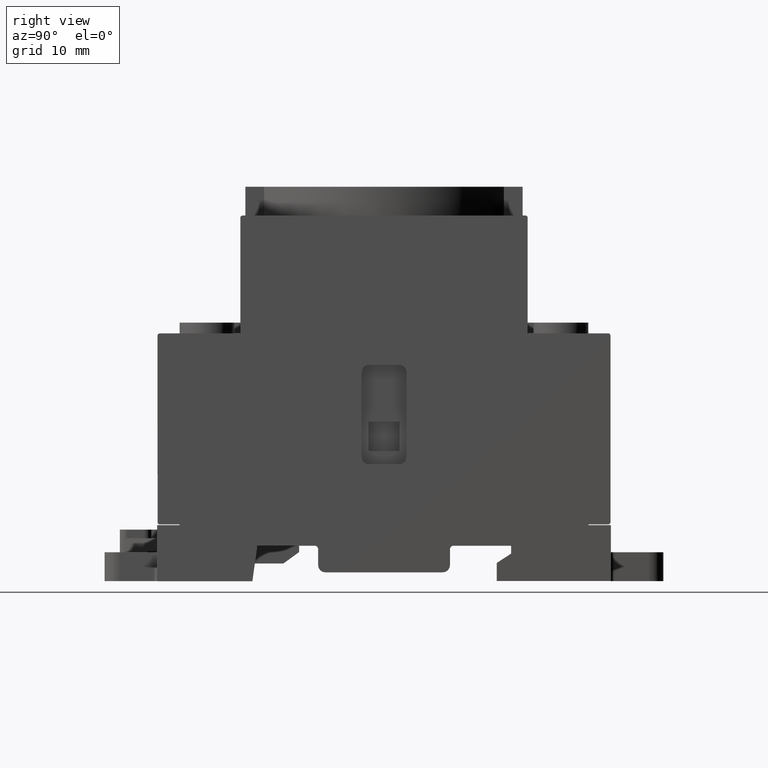
[diagram: clean part render]
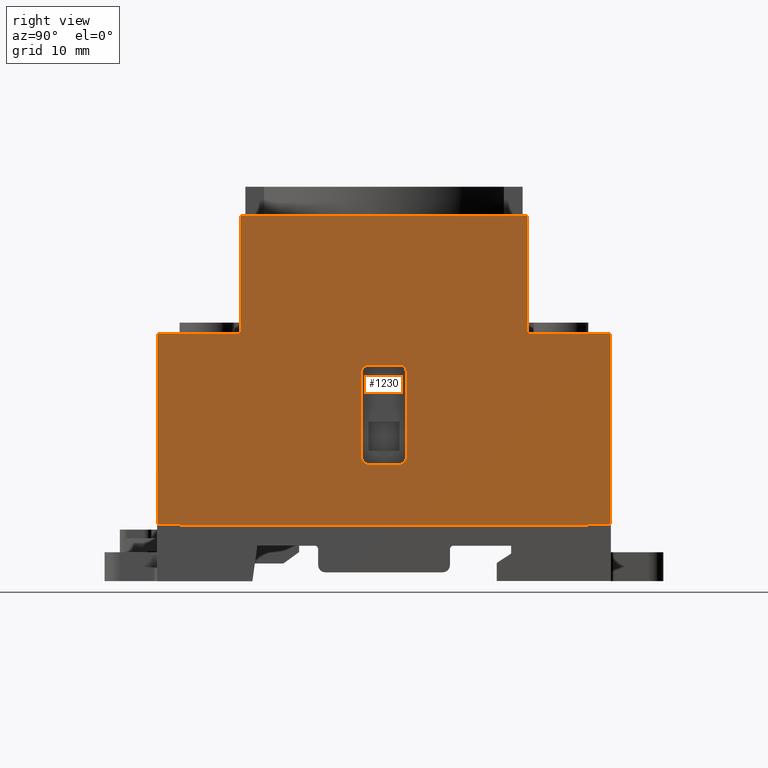
[diagram: same view with one face highlighted and labeled with its STEP entity id]
A machine part, right view. The second image highlights one B-rep face of the part: STEP entity #1230.
In plain terms, the highlighted planar face has unit normal (1, 0, 0).
Its self-contained STEP definition (entity closure, byte-faithful):
#1230=ADVANCED_FACE('',(#2026,#2027),#1693,.T.);
#1693=PLANE('',#10381);
#2026=FACE_BOUND('',#2260,.T.);
#2027=FACE_BOUND('',#2261,.T.);
#2260=EDGE_LOOP('',(#3896,#3897,#3898,#3899,#3900,#3901,#3902,#3903));
#2261=EDGE_LOOP('',(#3904,#3905,#3906,#3907,#3908,#3909,#3910,#3911,#3912,
#3913,#3914,#3915,#3916,#3917,#3918,#3919,#3920,#3921));
#2733=CIRCLE('',#10271,0.300000000000077);
#2734=CIRCLE('',#10279,0.299999999999963);
#2752=CIRCLE('',#10343,0.30000001135944);
#2753=CIRCLE('',#10349,0.30000001135944);
#2759=CIRCLE('',#10363,0.299999999999955);
#2760=CIRCLE('',#10367,0.300000000000068);
#2766=CIRCLE('',#10377,1.00000000379441);
#2767=CIRCLE('',#10378,1.0000000056778);
#2768=CIRCLE('',#10379,0.999999970752071);
#2769=CIRCLE('',#10380,0.999999995953317);
#3896=ORIENTED_EDGE('',*,*,#7220,.F.);
#3897=ORIENTED_EDGE('',*,*,#7221,.F.);
#3898=ORIENTED_EDGE('',*,*,#7222,.F.);
#3899=ORIENTED_EDGE('',*,*,#7223,.F.);
#3900=ORIENTED_EDGE('',*,*,#7224,.F.);
#3901=ORIENTED_EDGE('',*,*,#7225,.F.);
#3902=ORIENTED_EDGE('',*,*,#7226,.F.);
#3903=ORIENTED_EDGE('',*,*,#7227,.F.);
#3904=ORIENTED_EDGE('',*,*,#7152,.T.);
#3905=ORIENTED_EDGE('',*,*,#7162,.T.);
#3906=ORIENTED_EDGE('',*,*,#7169,.T.);
#3907=ORIENTED_EDGE('',*,*,#6963,.T.);
#3908=ORIENTED_EDGE('',*,*,#6980,.T.);
#3909=ORIENTED_EDGE('',*,*,#6994,.T.);
#3910=ORIENTED_EDGE('',*,*,#7003,.T.);
#3911=ORIENTED_EDGE('',*,*,#7014,.T.);
#3912=ORIENTED_EDGE('',*,*,#7171,.T.);
#3913=ORIENTED_EDGE('',*,*,#7174,.T.);
#3914=ORIENTED_EDGE('',*,*,#7177,.T.);
#3915=ORIENTED_EDGE('',*,*,#7191,.T.);
#3916=ORIENTED_EDGE('',*,*,#7196,.T.);
#3917=ORIENTED_EDGE('',*,*,#7203,.T.);
#3918=ORIENTED_EDGE('',*,*,#7205,.T.);
#3919=ORIENTED_EDGE('',*,*,#7121,.T.);
#3920=ORIENTED_EDGE('',*,*,#7140,.T.);
#3921=ORIENTED_EDGE('',*,*,#7143,.T.);
#5934=VERTEX_POINT('',#14345);
#5935=VERTEX_POINT('',#14347);
#5949=VERTEX_POINT('',#14448);
#5961=VERTEX_POINT('',#14512);
#5968=VERTEX_POINT('',#14596);
#5978=VERTEX_POINT('',#14618);
#6073=VERTEX_POINT('',#15056);
#6074=VERTEX_POINT('',#15058);
#6090=VERTEX_POINT('',#15093);
#6092=VERTEX_POINT('',#15114);
#6101=VERTEX_POINT('',#15133);
#6109=VERTEX_POINT('',#15176);
#6114=VERTEX_POINT('',#15209);
#6116=VERTEX_POINT('',#15218);
#6118=VERTEX_POINT('',#15224);
#6129=VERTEX_POINT('',#15249);
#6132=VERTEX_POINT('',#15279);
#6138=VERTEX_POINT('',#15299);
#6150=VERTEX_POINT('',#15370);
#6151=VERTEX_POINT('',#15371);
#6152=VERTEX_POINT('',#15373);
#6153=VERTEX_POINT('',#15375);
#6154=VERTEX_POINT('',#15377);
#6155=VERTEX_POINT('',#15379);
#6156=VERTEX_POINT('',#15381);
#6157=VERTEX_POINT('',#15383);
#6963=EDGE_CURVE('',#5935,#5934,#8252,.T.);
#6980=EDGE_CURVE('',#5934,#5949,#2733,.T.);
#6994=EDGE_CURVE('',#5949,#5961,#8271,.T.);
#7003=EDGE_CURVE('',#5961,#5968,#2734,.T.);
#7014=EDGE_CURVE('',#5968,#5978,#8281,.T.);
#7121=EDGE_CURVE('',#6074,#6073,#8344,.T.);
#7140=EDGE_CURVE('',#6073,#6090,#8356,.T.);
#7143=EDGE_CURVE('',#6090,#6092,#2752,.T.);
#7152=EDGE_CURVE('',#6092,#6101,#8362,.T.);
#7162=EDGE_CURVE('',#6101,#6109,#2753,.T.);
#7169=EDGE_CURVE('',#6109,#5935,#8370,.T.);
#7171=EDGE_CURVE('',#5978,#6114,#8372,.T.);
#7174=EDGE_CURVE('',#6114,#6116,#8374,.T.);
#7177=EDGE_CURVE('',#6116,#6118,#8377,.T.);
#7191=EDGE_CURVE('',#6118,#6129,#8387,.T.);
#7196=EDGE_CURVE('',#6129,#6132,#2759,.T.);
#7203=EDGE_CURVE('',#6132,#6138,#8395,.T.);
#7205=EDGE_CURVE('',#6138,#6074,#2760,.T.);
#7220=EDGE_CURVE('',#6150,#6151,#2766,.T.);
#7221=EDGE_CURVE('',#6152,#6150,#8403,.T.);
#7222=EDGE_CURVE('',#6153,#6152,#2767,.T.);
#7223=EDGE_CURVE('',#6154,#6153,#8404,.T.);
#7224=EDGE_CURVE('',#6155,#6154,#2768,.T.);
#7225=EDGE_CURVE('',#6156,#6155,#8405,.T.);
#7226=EDGE_CURVE('',#6157,#6156,#2769,.T.);
#7227=EDGE_CURVE('',#6151,#6157,#8406,.T.);
#8252=LINE('',#14346,#9287);
#8271=LINE('',#14513,#9306);
#8281=LINE('',#14619,#9316);
#8344=LINE('',#15057,#9379);
#8356=LINE('',#15094,#9391);
#8362=LINE('',#15134,#9397);
#8370=LINE('',#15205,#9405);
#8372=LINE('',#15208,#9407);
#8374=LINE('',#15217,#9409);
#8377=LINE('',#15223,#9412);
#8387=LINE('',#15250,#9422);
#8395=LINE('',#15300,#9430);
#8403=LINE('',#15372,#9438);
#8404=LINE('',#15376,#9439);
#8405=LINE('',#15380,#9440);
#8406=LINE('',#15384,#9441);
#9287=VECTOR('',#11577,1.);
#9306=VECTOR('',#11616,1.);
#9316=VECTOR('',#11646,1.);
#9379=VECTOR('',#11809,1.);
#9391=VECTOR('',#11837,1.);
#9397=VECTOR('',#11855,1.);
#9405=VECTOR('',#11873,1.);
#9407=VECTOR('',#11877,1.);
#9409=VECTOR('',#11881,1.);
#9412=VECTOR('',#11886,1.);
#9422=VECTOR('',#11906,1.);
#9430=VECTOR('',#11922,1.);
#9438=VECTOR('',#11956,1.);
#9439=VECTOR('',#11959,1.);
#9440=VECTOR('',#11962,1.);
#9441=VECTOR('',#11965,1.);
#10271=AXIS2_PLACEMENT_3D('',#14449,#11600,#11601);
#10279=AXIS2_PLACEMENT_3D('',#14597,#11629,#11630);
#10343=AXIS2_PLACEMENT_3D('',#15115,#11840,#11841);
#10349=AXIS2_PLACEMENT_3D('',#15177,#11862,#11863);
#10363=AXIS2_PLACEMENT_3D('',#15280,#11913,#11914);
#10367=AXIS2_PLACEMENT_3D('',#15304,#11927,#11928);
#10377=AXIS2_PLACEMENT_3D('',#15369,#11954,#11955);
#10378=AXIS2_PLACEMENT_3D('',#15374,#11957,#11958);
#10379=AXIS2_PLACEMENT_3D('',#15378,#11960,#11961);
#10380=AXIS2_PLACEMENT_3D('',#15382,#11963,#11964);
#10381=AXIS2_PLACEMENT_3D('',#15385,#11966,#11967);
#11577=DIRECTION('',(0.,-0.999999999982344,-5.94243338354822E-006));
#11600=DIRECTION('',(1.,0.,0.));
#11601=DIRECTION('',(0.,0.,1.));
#11616=DIRECTION('',(0.,5.94131062828003E-006,-0.999999999982351));
#11629=DIRECTION('',(1.,0.,0.));
#11630=DIRECTION('',(0.,0.,0.999999999999989));
#11646=DIRECTION('',(0.,0.999999999982357,5.94018289159245E-006));
#11809=DIRECTION('',(0.,-1.,1.27884006649481E-009));
#11837=DIRECTION('',(0.,3.07067344441846E-010,1.));
#11840=DIRECTION('',(1.,0.,0.));
#11841=DIRECTION('',(0.,0.,1.));
#11855=DIRECTION('',(0.,-0.999999999708678,-2.4138038935818E-005));
#11862=DIRECTION('',(1.,0.,0.));
#11863=DIRECTION('',(0.,0.,1.));
#11873=DIRECTION('',(0.,5.94115462204157E-006,-0.999999999982351));
#11877=DIRECTION('',(0.,5.94146193604084E-006,-0.99999999998235));
#11881=DIRECTION('',(0.,1.,0.));
#11886=DIRECTION('',(0.,3.06353707649638E-010,1.));
#11906=DIRECTION('',(0.,1.,9.71740790026304E-010));
#11913=DIRECTION('',(1.,0.,0.));
#11914=DIRECTION('',(0.,0.,0.999999999999995));
#11922=DIRECTION('',(0.,1.56004692388365E-010,1.));
#11927=DIRECTION('',(1.,0.,0.));
#11928=DIRECTION('',(0.,0.,0.999999999999998));
#11954=DIRECTION('',(1.,0.,0.));
#11955=DIRECTION('',(0.,0.,-0.999999999999998));
#11956=DIRECTION('',(0.,0.,-1.));
#11957=DIRECTION('',(1.,0.,0.));
#11958=DIRECTION('',(0.,0.,-1.));
#11959=DIRECTION('',(0.,-1.,1.35143880658643E-009));
#11960=DIRECTION('',(1.,0.,0.));
#11961=DIRECTION('',(0.,0.,-0.999999999999999));
#11962=DIRECTION('',(0.,-2.47867499071609E-009,1.));
#11963=DIRECTION('',(1.,0.,0.));
#11964=DIRECTION('',(0.,0.,-0.999999999999997));
#11965=DIRECTION('',(0.,1.,9.63333245854343E-010));
#11966=DIRECTION('',(1.,0.,0.));
#11967=DIRECTION('',(0.,0.,-1.));
#14345=CARTESIAN_POINT('',(18.,-31.1493287204146,-20.365669819461));
#14346=CARTESIAN_POINT('',(18.,-19.9498420528596,-20.3656032672576));
#14347=CARTESIAN_POINT('',(18.,-19.9498420528596,-20.3656032672576));
#14448=CARTESIAN_POINT('',(18.,-31.4493269379709,-20.6656716018935));
#14449=CARTESIAN_POINT('',(18.,-31.1493269379761,-20.665669819455));
#14512=CARTESIAN_POINT('',(18.,-31.4491728758695,-46.595671601436));
#14513=CARTESIAN_POINT('',(18.,-31.4493269340541,-20.665671601894));
#14596=CARTESIAN_POINT('',(18.,-31.1491710934367,-46.8956698189927));
#14597=CARTESIAN_POINT('',(18.,-31.1491728758751,-46.595669818998));
#14618=CARTESIAN_POINT('',(18.,-28.3790926930757,-46.8956533642197));
#14619=CARTESIAN_POINT('',(18.,-31.1491710934365,-46.895669818992));
#15056=CARTESIAN_POINT('',(18.,19.9499374932986,-20.3654847407242));
#15057=CARTESIAN_POINT('',(18.,31.1498121594629,-20.365484755047));
#15058=CARTESIAN_POINT('',(18.,31.1498121593708,-20.3654847550459));
#15093=CARTESIAN_POINT('',(18.,19.9499374982316,-4.30047432258315));
#15094=CARTESIAN_POINT('',(18.,19.9499374932986,-20.3654847407242));
#15114=CARTESIAN_POINT('',(18.,19.6499447168353,-4.00000000004421));
#15115=CARTESIAN_POINT('',(18.,19.6499374868722,-4.30047432249103));
#15133=CARTESIAN_POINT('',(18.,-19.6499447282842,-4.00047431113103));
#15134=CARTESIAN_POINT('',(18.,19.6499447053863,-3.99952568886943));
#15176=CARTESIAN_POINT('',(18.,-19.9499374982316,-4.3004779452066));
#15177=CARTESIAN_POINT('',(18.,-19.6499374868722,-4.30047432249103));
#15205=CARTESIAN_POINT('',(18.,-19.9499374982316,-4.30048156783005));
#15208=CARTESIAN_POINT('',(18.,-28.3790926930757,-46.89565336422));
#15209=CARTESIAN_POINT('',(18.,-28.3790921291742,-46.990562920384));
#15217=CARTESIAN_POINT('',(18.,-2.749677647444,-46.9904786171441));
#15218=CARTESIAN_POINT('',(18.,28.3797337508781,-46.9904786171441));
#15223=CARTESIAN_POINT('',(18.,28.3797337508781,-46.9904786171441));
#15224=CARTESIAN_POINT('',(18.,28.3797337509072,-46.895484757738));
#15249=CARTESIAN_POINT('',(18.,31.1498121513168,-46.895484755046));
#15250=CARTESIAN_POINT('',(18.,28.3797337509072,-46.8954847577378));
#15279=CARTESIAN_POINT('',(18.,31.4498121514091,-46.595484755046));
#15280=CARTESIAN_POINT('',(18.,31.1498121514091,-46.595484755046));
#15299=CARTESIAN_POINT('',(18.,31.4498121554541,-20.665484755138));
#15300=CARTESIAN_POINT('',(18.,31.4498121514089,-46.595484755138));
#15304=CARTESIAN_POINT('',(18.,31.1498121593708,-20.665484755046));
#15369=CARTESIAN_POINT('',(18.,-2.09920336351769,-37.557343004493));
#15370=CARTESIAN_POINT('',(18.,-3.0992033673121,-37.557342982822));
#15371=CARTESIAN_POINT('',(18.,-2.09920336351746,-38.557343004493));
#15372=CARTESIAN_POINT('',(18.,-3.0992033673121,-25.757496048577));
#15373=CARTESIAN_POINT('',(18.,-3.09920336919504,-25.7574960366291));
#15374=CARTESIAN_POINT('',(18.,-2.09920336351723,-25.7574960366291));
#15375=CARTESIAN_POINT('',(18.,-2.09920334968677,-24.757496030952));
#15376=CARTESIAN_POINT('',(18.,2.10079663648258,-24.757496036628));
#15377=CARTESIAN_POINT('',(18.,2.10079663648259,-24.757496065876));
#15378=CARTESIAN_POINT('',(18.,2.10079663648258,-25.757496036628));
#15379=CARTESIAN_POINT('',(18.,3.1007966072346,-25.757496048577));
#15380=CARTESIAN_POINT('',(18.,3.10079663648258,-37.557343004493));
#15381=CARTESIAN_POINT('',(18.,3.10079663243658,-37.557343004494));
#15382=CARTESIAN_POINT('',(18.,2.10079663648327,-37.557343004494));
#15383=CARTESIAN_POINT('',(18.,2.10079665085038,-38.557343000447));
#15384=CARTESIAN_POINT('',(18.,-2.09920336351746,-38.557343004493));
#15385=CARTESIAN_POINT('',(18.,-19.6499374868722,-4.30047432249103));